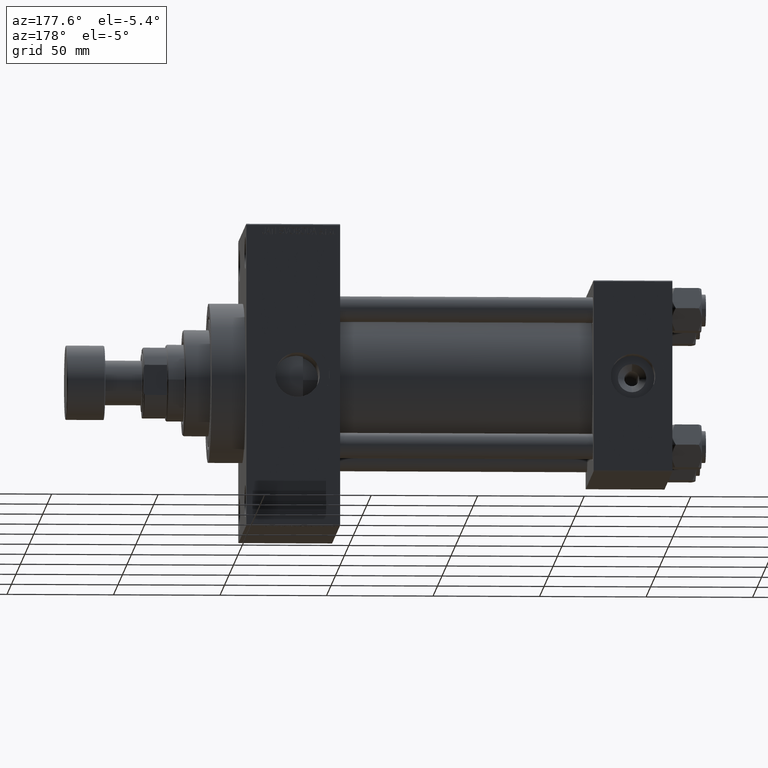
[diagram: clean part render]
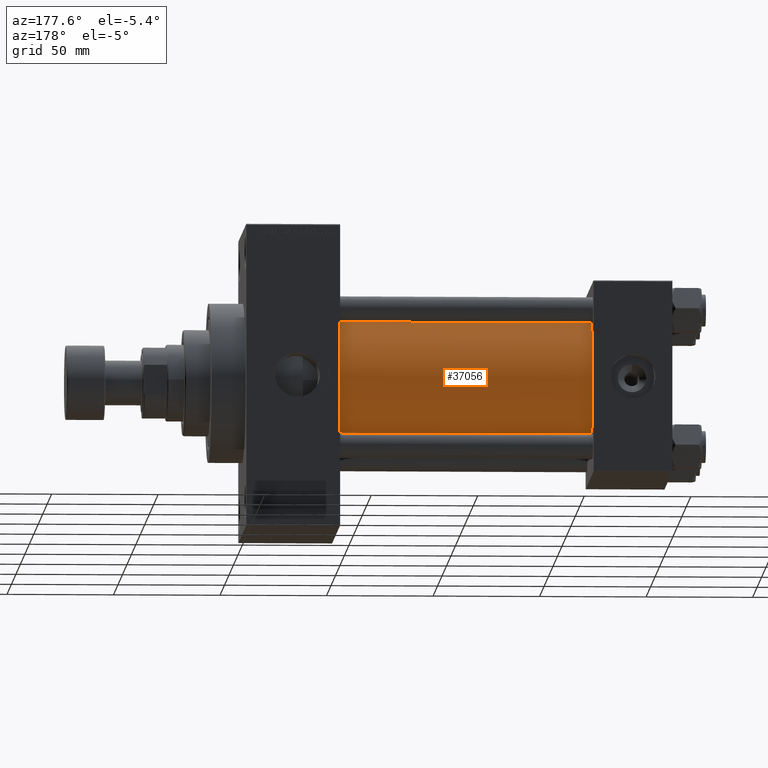
[diagram: same view with one face highlighted and labeled with its STEP entity id]
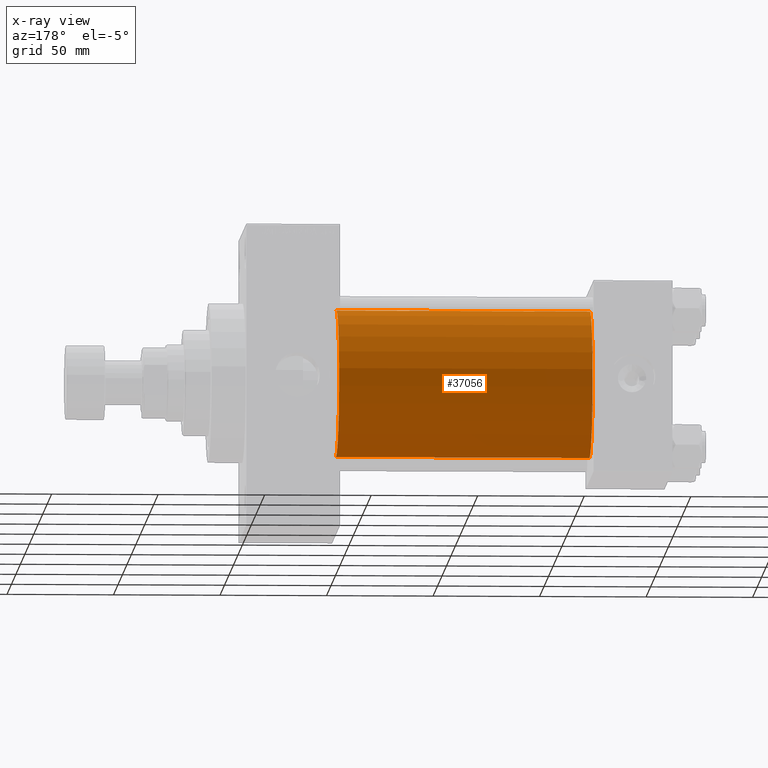
[diagram: x-ray of the same camera — body ghosted, the highlighted face saturated]
A machine part, auxiliary view. The second image highlights one B-rep face of the part: STEP entity #37056.
The next image is the same camera in x-ray: the body ghosted, the highlighted face saturated — about 0% of this face is hidden behind the body in this view.
In plain terms, the highlighted cylindrical surface (partial cylindrical patch) has radius 34.5 mm, axis along (-1, -0, -0).
Its self-contained STEP definition (entity closure, byte-faithful):
#165 = DIRECTION ( 'NONE',  ( 1.000000000000000000, 0.000000000000000000, 0.000000000000000000 ) ) ;
#4221 = LINE ( 'NONE', #33760, #29779 ) ;
#4297 = DIRECTION ( 'NONE',  ( 0.000000000000000000, 0.000000000000000000, -1.000000000000000000 ) ) ;
#4662 = VERTEX_POINT ( 'NONE', #31135 ) ;
#5981 = ORIENTED_EDGE ( 'NONE', *, *, #14839, .T. ) ;
#6581 = CARTESIAN_POINT ( 'NONE',  ( 37.00000000000000711, -2.602085213965210642E-15, 0.000000000000000000 ) ) ;
#7264 = DIRECTION ( 'NONE',  ( -1.000000000000000000, -0.000000000000000000, -0.000000000000000000 ) ) ;
#8466 = CARTESIAN_POINT ( 'NONE',  ( 156.0000000000000000, -2.602085213965210642E-15, 0.000000000000000000 ) ) ;
#11457 = AXIS2_PLACEMENT_3D ( 'NONE', #37469, #165, #4297 ) ;
#11864 = FACE_OUTER_BOUND ( 'NONE', #16367, .T. ) ;
#13170 = ORIENTED_EDGE ( 'NONE', *, *, #34934, .T. ) ;
#14839 = EDGE_CURVE ( 'NONE', #19551, #35117, #40077, .T. ) ;
#15280 = CARTESIAN_POINT ( 'NONE',  ( 37.00000000000000711, -2.602085213965210642E-15, 34.50000000000000000 ) ) ;
#16367 = EDGE_LOOP ( 'NONE', ( #41719, #13170, #5981, #45190 ) ) ;
#17480 = EDGE_CURVE ( 'NONE', #4662, #35117, #29547, .T. ) ;
#19551 = VERTEX_POINT ( 'NONE', #25959 ) ;
#22293 = CARTESIAN_POINT ( 'NONE',  ( 156.0000000000000000, -2.602085213965210642E-15, 34.50000000000000000 ) ) ;
#23925 = VECTOR ( 'NONE', #7264, 1000.000000000000000 ) ;
#24197 = DIRECTION ( 'NONE',  ( 0.000000000000000000, 0.000000000000000000, 1.000000000000000000 ) ) ;
#25959 = CARTESIAN_POINT ( 'NONE',  ( 37.00000000000000711, 1.622946243093158675E-15, -34.50000000000000000 ) ) ;
#26623 = CYLINDRICAL_SURFACE ( 'NONE', #37480, 34.50000000000000000 ) ;
#28613 = DIRECTION ( 'NONE',  ( 1.000000000000000000, -0.000000000000000000, 0.000000000000000000 ) ) ;
#29547 = LINE ( 'NONE', #22293, #23925 ) ;
#29779 = VECTOR ( 'NONE', #34483, 1000.000000000000000 ) ;
#31135 = CARTESIAN_POINT ( 'NONE',  ( 156.0000000000000000, -2.602085213965210642E-15, 34.50000000000000000 ) ) ;
#33760 = CARTESIAN_POINT ( 'NONE',  ( 156.0000000000000000, 1.622946243093158675E-15, -34.50000000000000000 ) ) ;
#34483 = DIRECTION ( 'NONE',  ( -1.000000000000000000, -0.000000000000000000, -0.000000000000000000 ) ) ;
#34934 = EDGE_CURVE ( 'NONE', #35889, #19551, #4221, .T. ) ;
#35117 = VERTEX_POINT ( 'NONE', #15280 ) ;
#35881 = DIRECTION ( 'NONE',  ( 0.000000000000000000, 0.000000000000000000, 1.000000000000000000 ) ) ;
#35889 = VERTEX_POINT ( 'NONE', #42826 ) ;
#37056 = ADVANCED_FACE ( 'NONE', ( #11864 ), #26623, .T. ) ;
#37469 = CARTESIAN_POINT ( 'NONE',  ( 156.0000000000000000, -2.602085213965210642E-15, 0.000000000000000000 ) ) ;
#37480 = AXIS2_PLACEMENT_3D ( 'NONE', #8466, #42118, #24197 ) ;
#38545 = AXIS2_PLACEMENT_3D ( 'NONE', #6581, #28613, #35881 ) ;
#40077 = CIRCLE ( 'NONE', #38545, 34.50000000000000000 ) ;
#41719 = ORIENTED_EDGE ( 'NONE', *, *, #43266, .F. ) ;
#42118 = DIRECTION ( 'NONE',  ( -1.000000000000000000, -0.000000000000000000, -0.000000000000000000 ) ) ;
#42826 = CARTESIAN_POINT ( 'NONE',  ( 156.0000000000000000, 1.622946243093158675E-15, -34.50000000000000000 ) ) ;
#43266 = EDGE_CURVE ( 'NONE', #35889, #4662, #47001, .T. ) ;
#45190 = ORIENTED_EDGE ( 'NONE', *, *, #17480, .F. ) ;
#47001 = CIRCLE ( 'NONE', #11457, 34.50000000000000000 ) ;